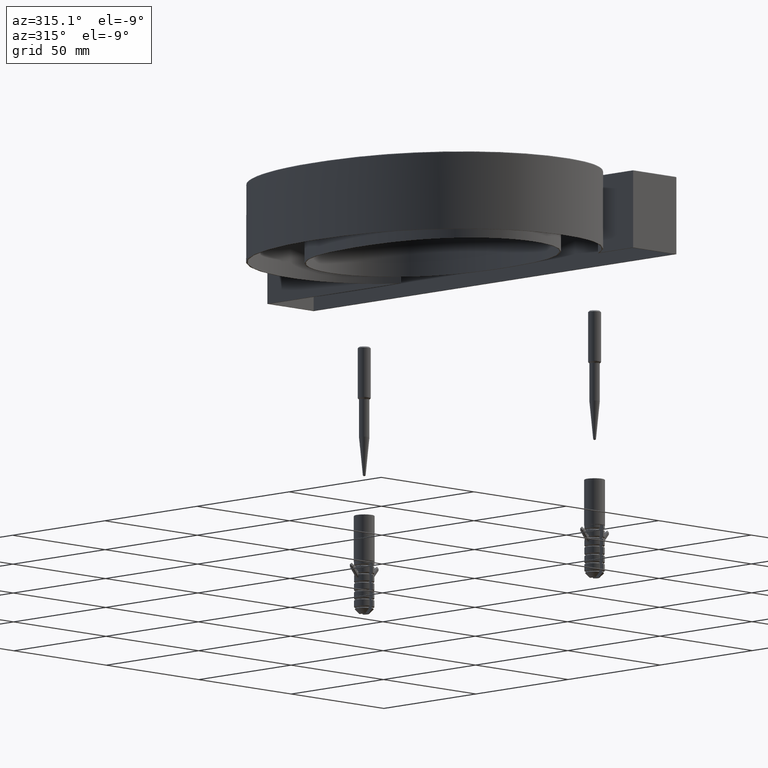
[diagram: clean part render]
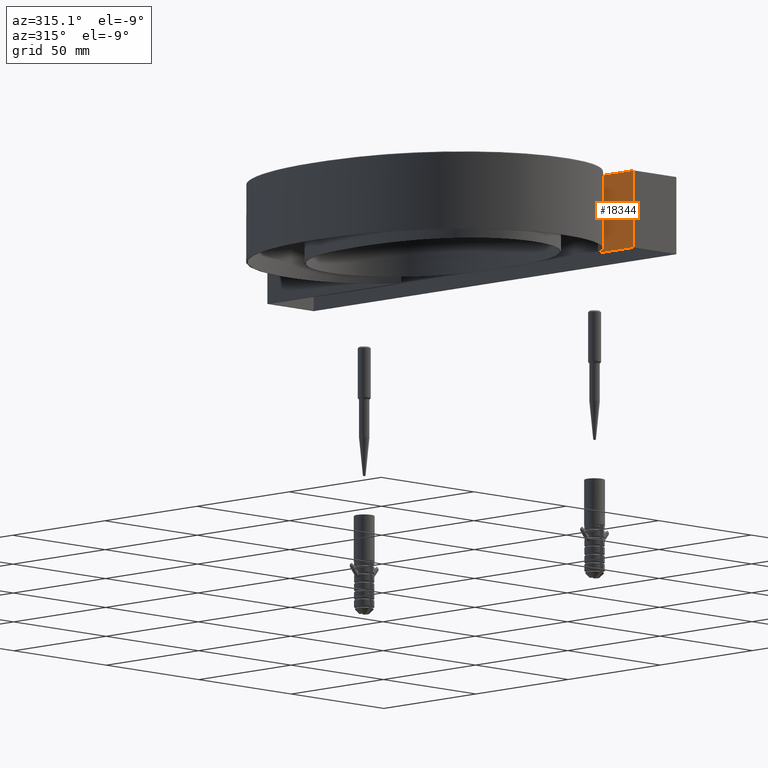
[diagram: same view with one face highlighted and labeled with its STEP entity id]
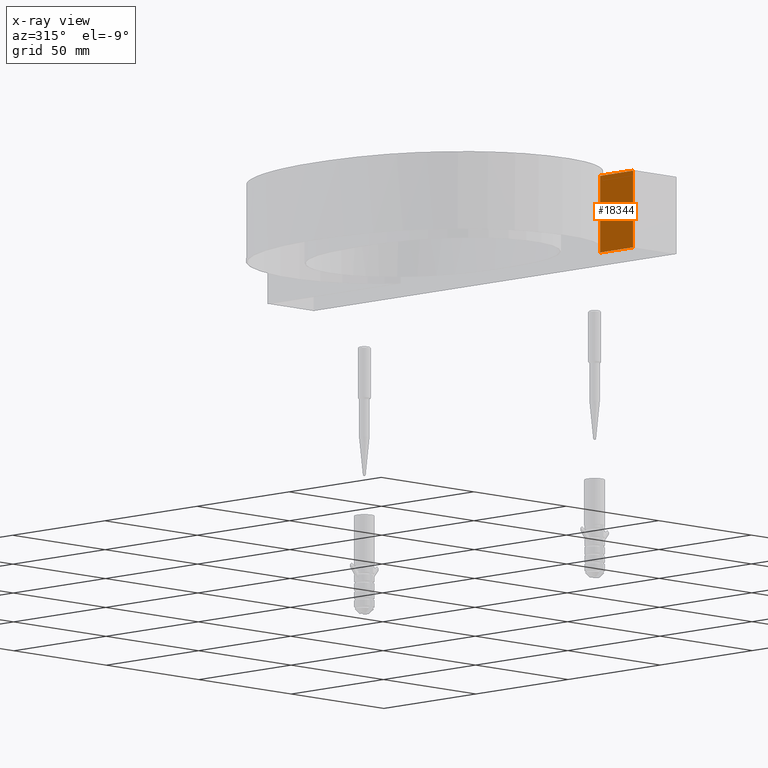
[diagram: x-ray of the same camera — body ghosted, the highlighted face saturated]
A machine part, auxiliary view. The second image highlights one B-rep face of the part: STEP entity #18344.
The next image is the same camera in x-ray: the body ghosted, the highlighted face saturated — about 0% of this face is hidden behind the body in this view.
In plain terms, the highlighted planar face has unit normal (1, 0, 0).
Its self-contained STEP definition (entity closure, byte-faithful):
#586 = VERTEX_POINT ( 'NONE', #15990 ) ;
#973 = CARTESIAN_POINT ( 'NONE',  ( -13.33725356724732500, 0.8541344525433911500, 2.000000000000000000 ) ) ;
#1431 = ORIENTED_EDGE ( 'NONE', *, *, #16875, .F. ) ;
#1654 = VECTOR ( 'NONE', #12310, 1000.000000000000000 ) ;
#1888 = DIRECTION ( 'NONE',  ( -0.0000000000000000000, 0.0000000000000000000, -1.000000000000000000 ) ) ;
#3945 = CARTESIAN_POINT ( 'NONE',  ( -13.33725356724732500, 18.74677858773115300, 2.000000000000000000 ) ) ;
#4037 = PLANE ( 'NONE',  #28545 ) ;
#4554 = VECTOR ( 'NONE', #27329, 1000.000000000000000 ) ;
#6081 = VERTEX_POINT ( 'NONE', #20777 ) ;
#6178 = EDGE_CURVE ( 'NONE', #8706, #23147, #8627, .T. ) ;
#7751 = FACE_OUTER_BOUND ( 'NONE', #20122, .T. ) ;
#7952 = LINE ( 'NONE', #26769, #23768 ) ;
#8627 = LINE ( 'NONE', #973, #1654 ) ;
#8706 = VERTEX_POINT ( 'NONE', #25699 ) ;
#12310 = DIRECTION ( 'NONE',  ( -0.0000000000000000000, -0.0000000000000000000, -1.000000000000000000 ) ) ;
#12399 = CARTESIAN_POINT ( 'NONE',  ( -13.33725356724732300, 18.74677858773115300, 2.000000000000000000 ) ) ;
#14182 = CARTESIAN_POINT ( 'NONE',  ( -13.33725356724732500, 18.74677858773115300, 1.750000000000000000 ) ) ;
#15807 = LINE ( 'NONE', #14182, #4554 ) ;
#15990 = CARTESIAN_POINT ( 'NONE',  ( -13.33725356724732300, 18.74677858773115300, -28.00000000000000000 ) ) ;
#16875 = EDGE_CURVE ( 'NONE', #23147, #586, #7952, .T. ) ;
#18344 = ADVANCED_FACE ( 'NONE', ( #7751 ), #4037, .F. ) ;
#18453 = ORIENTED_EDGE ( 'NONE', *, *, #18936, .T. ) ;
#18936 = EDGE_CURVE ( 'NONE', #8706, #6081, #15807, .T. ) ;
#19169 = VECTOR ( 'NONE', #21162, 1000.000000000000000 ) ;
#19842 = LINE ( 'NONE', #12399, #19169 ) ;
#20122 = EDGE_LOOP ( 'NONE', ( #25267, #18453, #25381, #1431 ) ) ;
#20777 = CARTESIAN_POINT ( 'NONE',  ( -13.33725356724732300, 18.74677858773115300, 1.750000000000000000 ) ) ;
#21162 = DIRECTION ( 'NONE',  ( -0.0000000000000000000, -0.0000000000000000000, -1.000000000000000000 ) ) ;
#21555 = EDGE_CURVE ( 'NONE', #6081, #586, #19842, .T. ) ;
#22516 = DIRECTION ( 'NONE',  ( 9.695176760182087000E-017, 1.000000000000000000, 0.0000000000000000000 ) ) ;
#23147 = VERTEX_POINT ( 'NONE', #26450 ) ;
#23768 = VECTOR ( 'NONE', #22516, 1000.000000000000000 ) ;
#25267 = ORIENTED_EDGE ( 'NONE', *, *, #6178, .F. ) ;
#25381 = ORIENTED_EDGE ( 'NONE', *, *, #21555, .T. ) ;
#25699 = CARTESIAN_POINT ( 'NONE',  ( -13.33725356724732500, 0.8541344525433911500, 1.750000000000000000 ) ) ;
#26432 = DIRECTION ( 'NONE',  ( 1.000000000000000000, 0.0000000000000000000, -0.0000000000000000000 ) ) ;
#26450 = CARTESIAN_POINT ( 'NONE',  ( -13.33725356724732500, 0.8541344525433911500, -28.00000000000000000 ) ) ;
#26769 = CARTESIAN_POINT ( 'NONE',  ( -13.33725356724732500, 1.293070308298319000E-015, -28.00000000000000000 ) ) ;
#27329 = DIRECTION ( 'NONE',  ( -0.0000000000000000000, 1.000000000000000000, -0.0000000000000000000 ) ) ;
#28545 = AXIS2_PLACEMENT_3D ( 'NONE', #3945, #26432, #1888 ) ;